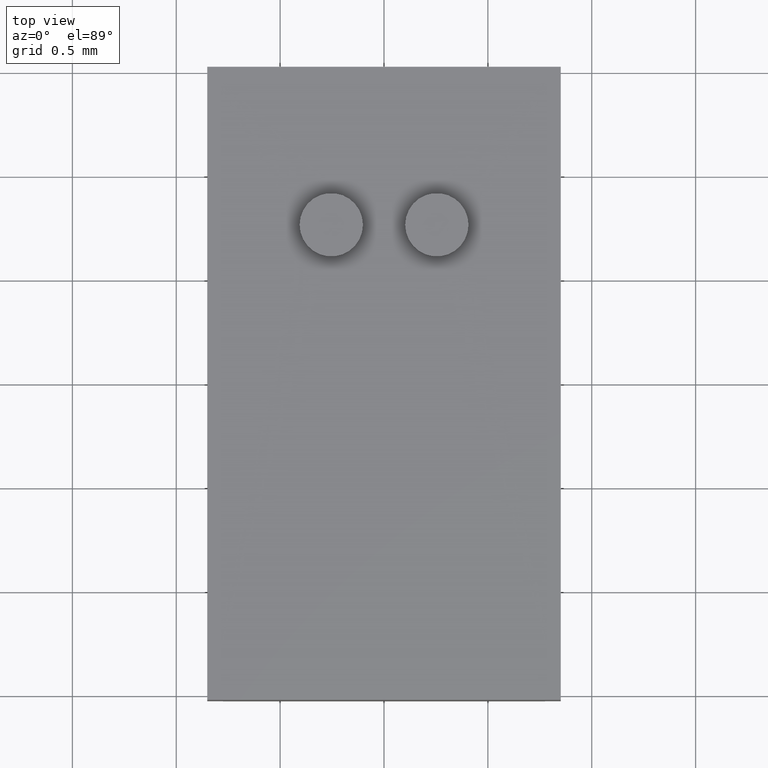
[diagram: clean part render]
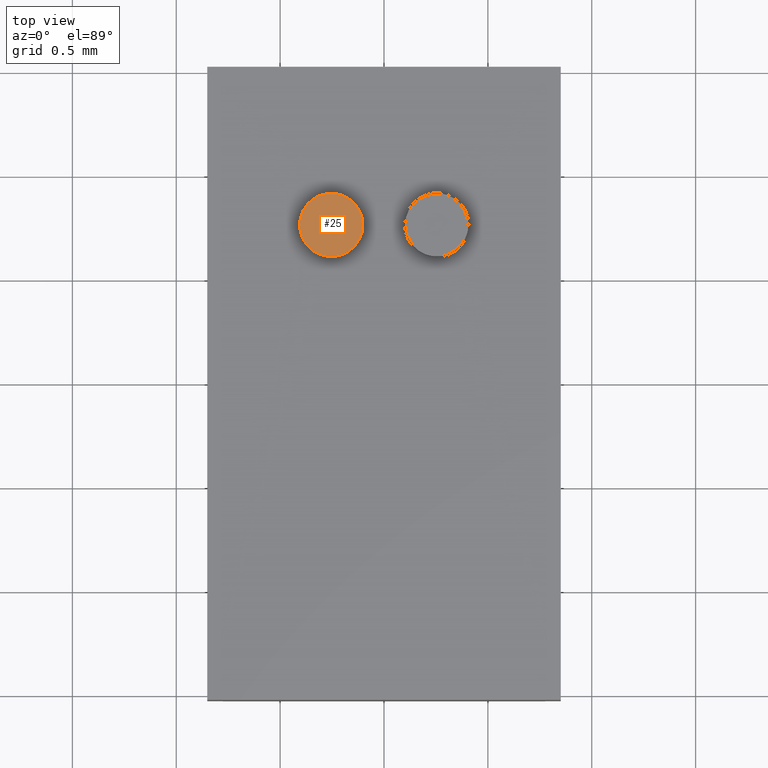
[diagram: same view with one face highlighted and labeled with its STEP entity id]
A machine part, top view. The second image highlights one B-rep face of the part: STEP entity #25.
In plain terms, the highlighted planar face has unit normal (0, 0, 1).
Its self-contained STEP definition (entity closure, byte-faithful):
#11 = CARTESIAN_POINT ( 'NONE',  ( -0.009999999999990906788, 0.02999999999997271516, 0.01800000000000000211 ) ) ;
#25 = ADVANCED_FACE ( 'NONE', ( #565 ), #105, .T. ) ;
#43 = EDGE_CURVE ( 'NONE', #387, #179, #479, .T. ) ;
#46 = DIRECTION ( 'NONE',  ( 0.000000000000000000, 0.000000000000000000, 1.000000000000000000 ) ) ;
#96 = DIRECTION ( 'NONE',  ( 0.000000000000000000, 0.000000000000000000, 1.000000000000000000 ) ) ;
#99 = CARTESIAN_POINT ( 'NONE',  ( -0.009999999999990906788, 0.02999999999997271516, 0.01800000000000000211 ) ) ;
#105 = PLANE ( 'NONE',  #396 ) ;
#109 = DIRECTION ( 'NONE',  ( 1.000000000000000000, 0.000000000000000000, 0.000000000000000000 ) ) ;
#115 = DIRECTION ( 'NONE',  ( 0.000000000000000000, 0.000000000000000000, 1.000000000000000000 ) ) ;
#143 = AXIS2_PLACEMENT_3D ( 'NONE', #99, #46, #659 ) ;
#179 = VERTEX_POINT ( 'NONE', #469 ) ;
#240 = CIRCLE ( 'NONE', #248, 0.006000000000000000992 ) ;
#248 = AXIS2_PLACEMENT_3D ( 'NONE', #11, #115, #109 ) ;
#270 = ORIENTED_EDGE ( 'NONE', *, *, #508, .T. ) ;
#330 = EDGE_LOOP ( 'NONE', ( #270, #630 ) ) ;
#387 = VERTEX_POINT ( 'NONE', #546 ) ;
#396 = AXIS2_PLACEMENT_3D ( 'NONE', #611, #96, #415 ) ;
#415 = DIRECTION ( 'NONE',  ( 1.000000000000000000, 0.000000000000000000, -0.000000000000000000 ) ) ;
#469 = CARTESIAN_POINT ( 'NONE',  ( -0.01599999999999090691, 0.02999999999997271516, 0.01800000000000000211 ) ) ;
#479 = CIRCLE ( 'NONE', #143, 0.006000000000000000992 ) ;
#508 = EDGE_CURVE ( 'NONE', #179, #387, #240, .T. ) ;
#546 = CARTESIAN_POINT ( 'NONE',  ( -0.003999999999990904928, 0.02999999999997271516, 0.01800000000000000211 ) ) ;
#565 = FACE_OUTER_BOUND ( 'NONE', #330, .T. ) ;
#611 = CARTESIAN_POINT ( 'NONE',  ( 0.000000000000000000, 0.000000000000000000, 0.01800000000000000211 ) ) ;
#630 = ORIENTED_EDGE ( 'NONE', *, *, #43, .T. ) ;
#659 = DIRECTION ( 'NONE',  ( 1.000000000000000000, 0.000000000000000000, 0.000000000000000000 ) ) ;